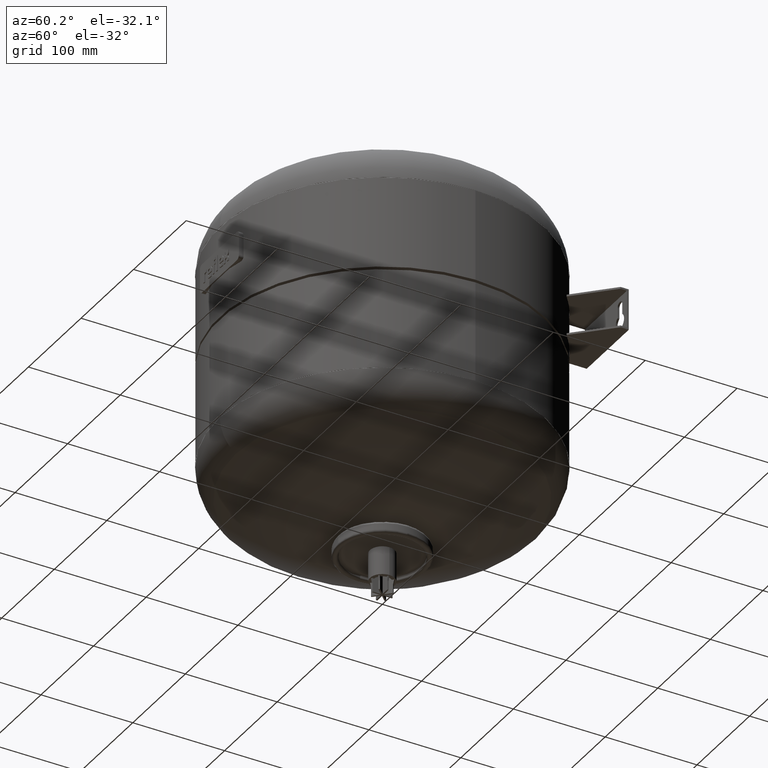
[diagram: clean part render]
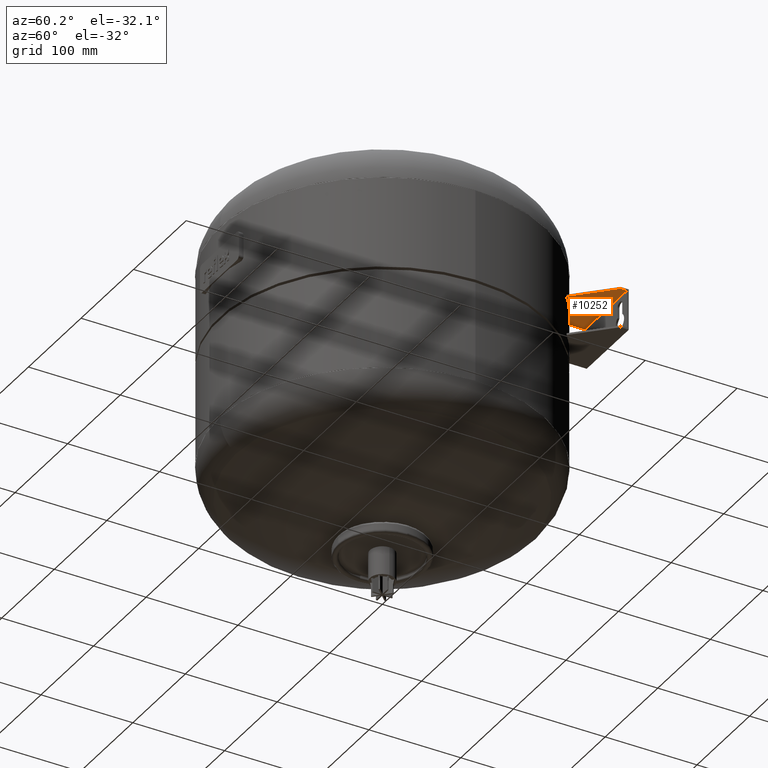
[diagram: same view with one face highlighted and labeled with its STEP entity id]
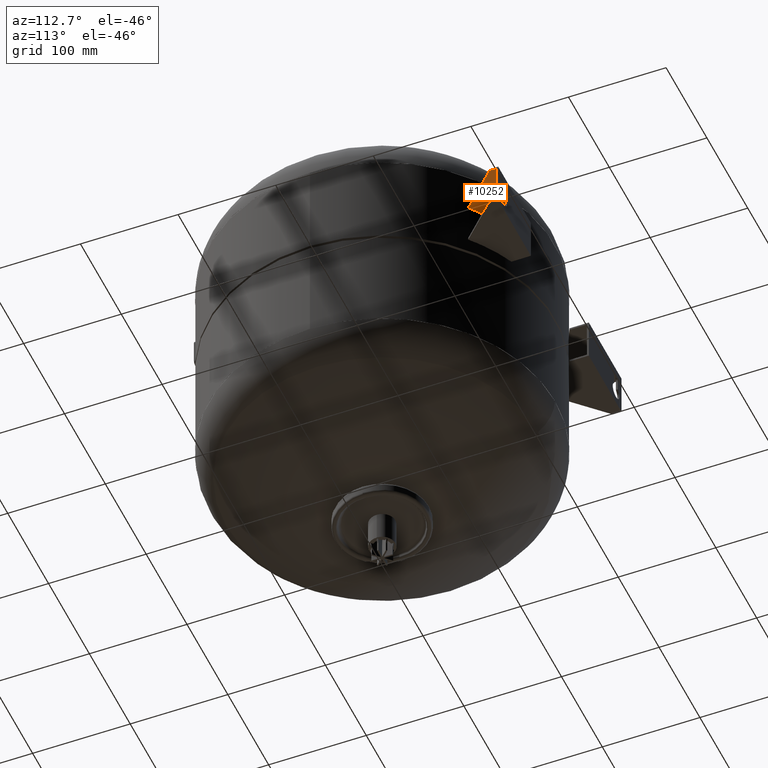
[diagram: same view with one face highlighted and labeled with its STEP entity id]
A machine part, auxiliary view. The second image highlights one B-rep face of the part: STEP entity #10252.
A second angle (auxiliary view) of the same face is appended — the face is thin or edge-on in the first view.
In plain terms, the highlighted planar face has unit normal (0, 0, -1).
Its self-contained STEP definition (entity closure, byte-faithful):
#10016=CARTESIAN_POINT('',(113.6735737837013,135.67357378370127,313.5));
#10017=VERTEX_POINT('',#10016);
#10018=CARTESIAN_POINT('',(71.0,162.13574559608995,313.5));
#10019=VERTEX_POINT('',#10018);
#10020=CARTESIAN_POINT('',(5.684342E-014,-2.632991E-015,313.5));
#10021=DIRECTION('',(-4.887835E-018,-5.833810E-018,1.0));
#10022=DIRECTION('',(0.642223580698877,0.766517366009612,7.610799E-018));
#10023=AXIS2_PLACEMENT_3D('',#10020,#10021,#10022);
#10024=CIRCLE('',#10023,176.99999999999994);
#10025=EDGE_CURVE('',#10017,#10019,#10024,.T.);
#10100=CARTESIAN_POINT('',(151.0,173.0,313.5));
#10101=VERTEX_POINT('',#10100);
#10102=CARTESIAN_POINT('',(151.00000000000003,173.0,313.5));
#10103=DIRECTION('',(-0.707106781186547,-0.707106781186547,0.0));
#10104=VECTOR('',#10103,52.787538190008313);
#10105=LINE('',#10102,#10104);
#10106=EDGE_CURVE('',#10101,#10017,#10105,.T.);
#10221=CARTESIAN_POINT('',(71.0,180.0,313.5));
#10222=DIRECTION('',(0.0,0.0,-1.0));
#10223=DIRECTION('',(-1.0,0.0,0.0));
#10224=AXIS2_PLACEMENT_3D('',#10221,#10222,#10223);
#10225=PLANE('',#10224);
#10226=ORIENTED_EDGE('',*,*,#10106,.T.);
#10227=ORIENTED_EDGE('',*,*,#10025,.T.);
#10228=CARTESIAN_POINT('',(71.0,180.0,313.5));
#10229=VERTEX_POINT('',#10228);
#10230=CARTESIAN_POINT('',(71.0,180.0,313.5));
#10231=DIRECTION('',(0.0,-1.0,0.0));
#10232=VECTOR('',#10231,17.864254403910053);
#10233=LINE('',#10230,#10232);
#10234=EDGE_CURVE('',#10229,#10019,#10233,.T.);
#10235=ORIENTED_EDGE('',*,*,#10234,.F.);
#10236=CARTESIAN_POINT('',(151.0,180.0,313.5));
#10237=VERTEX_POINT('',#10236);
#10238=CARTESIAN_POINT('',(71.0,180.0,313.5));
#10239=DIRECTION('',(1.0,0.0,0.0));
#10240=VECTOR('',#10239,80.0);
#10241=LINE('',#10238,#10240);
#10242=EDGE_CURVE('',#10229,#10237,#10241,.T.);
#10243=ORIENTED_EDGE('',*,*,#10242,.T.);
#10244=CARTESIAN_POINT('',(151.0,180.0,313.5));
#10245=DIRECTION('',(0.0,-1.0,0.0));
#10246=VECTOR('',#10245,7.0);
#10247=LINE('',#10244,#10246);
#10248=EDGE_CURVE('',#10237,#10101,#10247,.T.);
#10249=ORIENTED_EDGE('',*,*,#10248,.T.);
#10250=EDGE_LOOP('',(#10226,#10227,#10235,#10243,#10249));
#10251=FACE_OUTER_BOUND('',#10250,.T.);
#10252=ADVANCED_FACE('',(#10251),#10225,.T.);